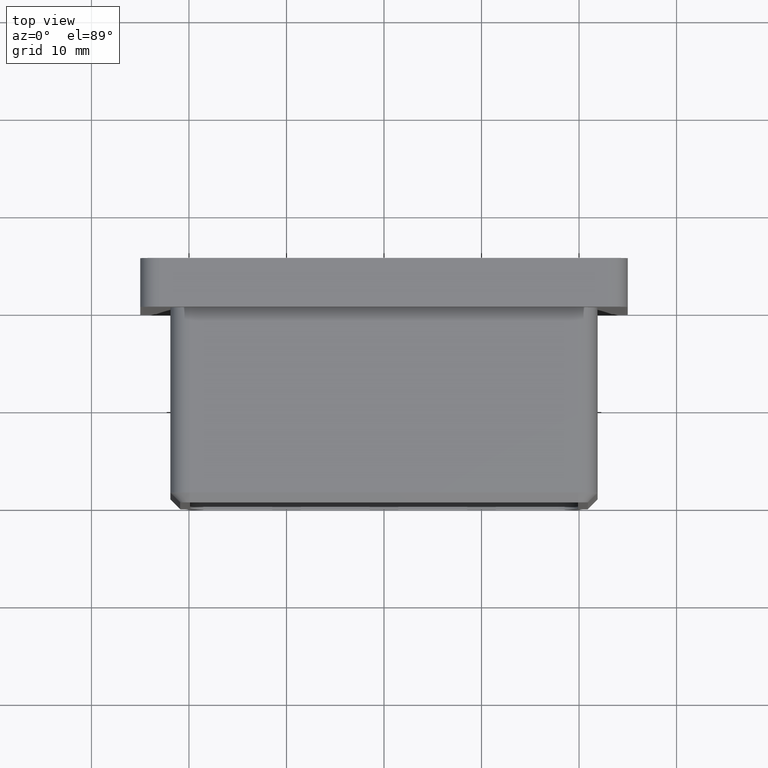
[diagram: clean part render]
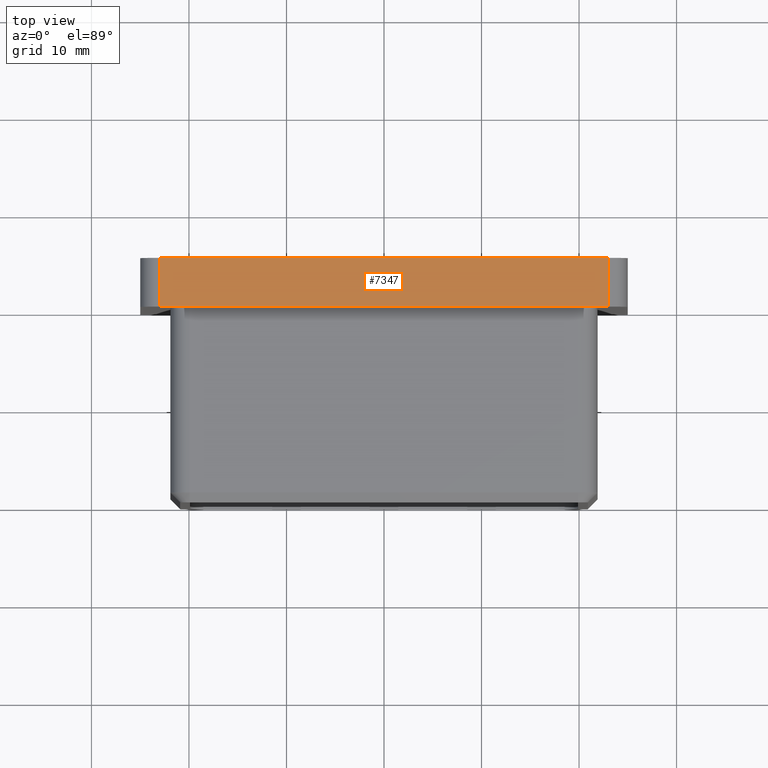
[diagram: same view with one face highlighted and labeled with its STEP entity id]
A machine part, top view. The second image highlights one B-rep face of the part: STEP entity #7347.
In plain terms, the highlighted planar face has unit normal (0, 0, -1).
Its self-contained STEP definition (entity closure, byte-faithful):
#184 = ORIENTED_EDGE ( 'NONE', *, *, #7671, .T. ) ;
#462 = CARTESIAN_POINT ( 'NONE',  ( 22.99999999999999600, 5.000000000000000000, 24.99999999999998600 ) ) ;
#705 = EDGE_CURVE ( 'NONE', #9922, #11034, #8946, .T. ) ;
#1519 = VECTOR ( 'NONE', #6827, 1000.000000000000000 ) ;
#2587 = DIRECTION ( 'NONE',  ( 1.000000000000000000, 0.0000000000000000000, 0.0000000000000000000 ) ) ;
#2830 = CARTESIAN_POINT ( 'NONE',  ( -22.99999999999999300, 5.000000000000000000, 24.99999999999998600 ) ) ;
#3337 = EDGE_CURVE ( 'NONE', #9922, #14784, #4947, .T. ) ;
#4209 = VECTOR ( 'NONE', #6454, 1000.000000000000000 ) ;
#4655 = LINE ( 'NONE', #13769, #4209 ) ;
#4947 = LINE ( 'NONE', #2830, #10306 ) ;
#6454 = DIRECTION ( 'NONE',  ( 1.000000000000000000, 0.0000000000000000000, 0.0000000000000000000 ) ) ;
#6827 = DIRECTION ( 'NONE',  ( -0.0000000000000000000, 1.000000000000000000, -0.0000000000000000000 ) ) ;
#7347 = ADVANCED_FACE ( 'NONE', ( #11733 ), #8100, .F. ) ;
#7671 = EDGE_CURVE ( 'NONE', #12940, #11034, #18244, .T. ) ;
#7857 = CARTESIAN_POINT ( 'NONE',  ( 22.99999999999999600, 0.0000000000000000000, 24.99999999999998600 ) ) ;
#8100 = PLANE ( 'NONE',  #9981 ) ;
#8397 = CARTESIAN_POINT ( 'NONE',  ( 22.99999999999999600, 5.000000000000000000, 24.99999999999998600 ) ) ;
#8946 = LINE ( 'NONE', #17495, #14260 ) ;
#9101 = EDGE_LOOP ( 'NONE', ( #12661, #184, #14380, #11703 ) ) ;
#9146 = CARTESIAN_POINT ( 'NONE',  ( -22.99999999999999300, 0.0000000000000000000, 24.99999999999998600 ) ) ;
#9590 = DIRECTION ( 'NONE',  ( -1.000000000000000000, 0.0000000000000000000, -0.0000000000000000000 ) ) ;
#9922 = VERTEX_POINT ( 'NONE', #15979 ) ;
#9981 = AXIS2_PLACEMENT_3D ( 'NONE', #12546, #13962, #9590 ) ;
#10306 = VECTOR ( 'NONE', #13170, 1000.000000000000000 ) ;
#11034 = VERTEX_POINT ( 'NONE', #462 ) ;
#11703 = ORIENTED_EDGE ( 'NONE', *, *, #3337, .T. ) ;
#11733 = FACE_OUTER_BOUND ( 'NONE', #9101, .T. ) ;
#12546 = CARTESIAN_POINT ( 'NONE',  ( -24.99999999999998900, 5.000000000000000000, 24.99999999999998600 ) ) ;
#12661 = ORIENTED_EDGE ( 'NONE', *, *, #13930, .T. ) ;
#12940 = VERTEX_POINT ( 'NONE', #7857 ) ;
#13170 = DIRECTION ( 'NONE',  ( 0.0000000000000000000, -1.000000000000000000, 0.0000000000000000000 ) ) ;
#13769 = CARTESIAN_POINT ( 'NONE',  ( -24.99999999999998900, 0.0000000000000000000, 24.99999999999998600 ) ) ;
#13930 = EDGE_CURVE ( 'NONE', #14784, #12940, #4655, .T. ) ;
#13962 = DIRECTION ( 'NONE',  ( 0.0000000000000000000, 0.0000000000000000000, -1.000000000000000000 ) ) ;
#14260 = VECTOR ( 'NONE', #2587, 1000.000000000000000 ) ;
#14380 = ORIENTED_EDGE ( 'NONE', *, *, #705, .F. ) ;
#14784 = VERTEX_POINT ( 'NONE', #9146 ) ;
#15979 = CARTESIAN_POINT ( 'NONE',  ( -22.99999999999999300, 5.000000000000000000, 24.99999999999998600 ) ) ;
#17495 = CARTESIAN_POINT ( 'NONE',  ( -24.99999999999998900, 5.000000000000000000, 24.99999999999998600 ) ) ;
#18244 = LINE ( 'NONE', #8397, #1519 ) ;